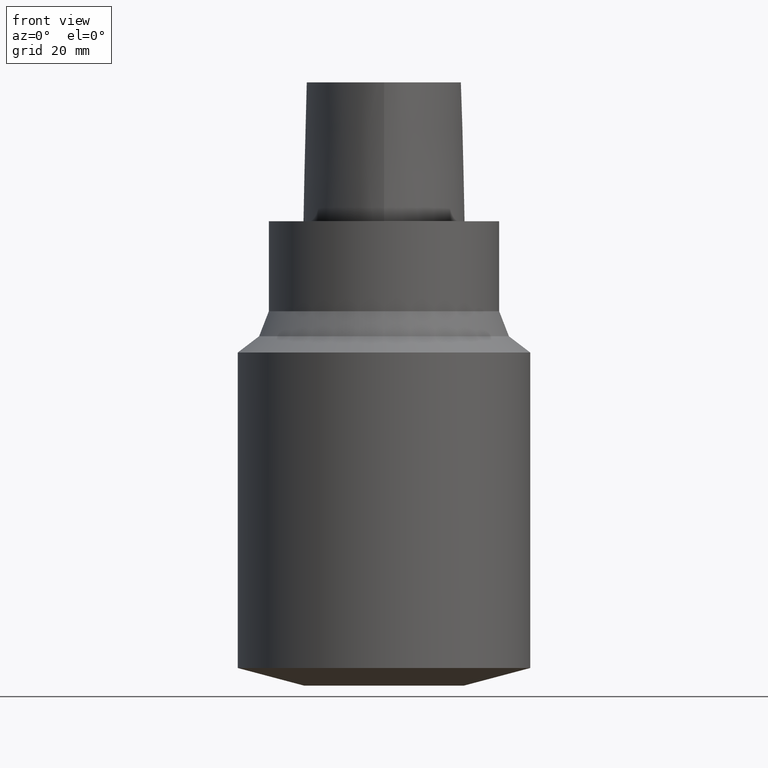
[diagram: clean part render]
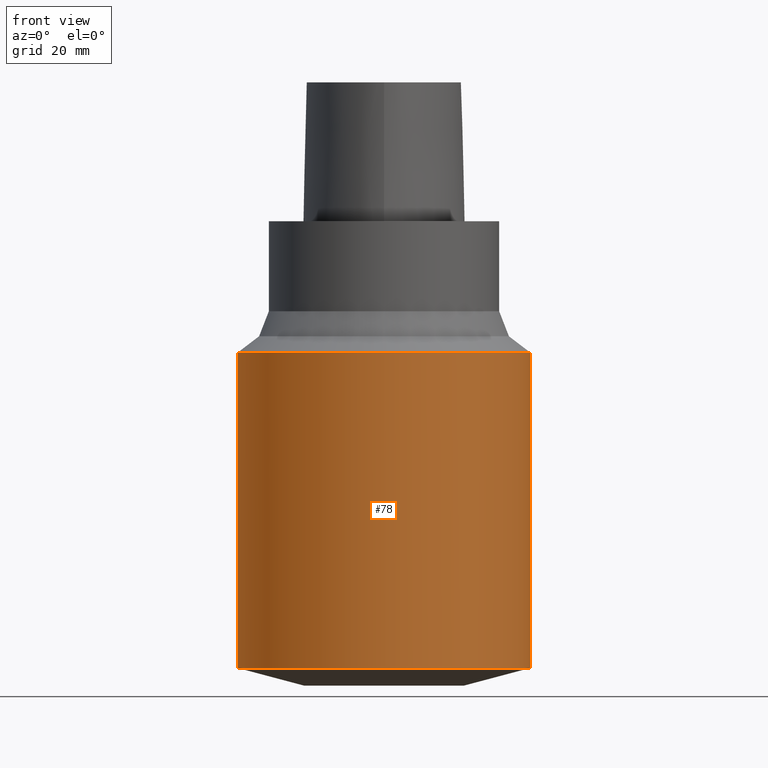
[diagram: same view with one face highlighted and labeled with its STEP entity id]
A machine part, front view. The second image highlights one B-rep face of the part: STEP entity #78.
In plain terms, the highlighted cylindrical surface (bore or boss wall) has radius 40 mm, axis along (0, 0, -1).
Its self-contained STEP definition (entity closure, byte-faithful):
#78=ADVANCED_FACE('Unnamed[1]',(#170,#171),#172,.T.);
#80=EDGE_CURVE('Unnamed[1]',#174,#174,#175,.T.);
#110=EDGE_CURVE('Unnamed[1]',#217,#217,#218,.T.);
#170=FACE_BOUND('',#466,.T.);
#171=FACE_BOUND('',#467,.T.);
#172=CYLINDRICAL_SURFACE('',#468,40.0000000000142);
#174=VERTEX_POINT('',#471);
#175=CIRCLE('',#472,40.0000000000324);
#217=VERTEX_POINT('',#542);
#218=CIRCLE('',#543,39.9999999999961);
#466=EDGE_LOOP('',(#580));
#467=EDGE_LOOP('',(#581));
#468=AXIS2_PLACEMENT_3D('',#582,#583,#584);
#471=CARTESIAN_POINT('',(2.19742975838125E-015,40.0000000000324,-35.8867513459584));
#472=AXIS2_PLACEMENT_3D('',#585,#586,#587);
#542=CARTESIAN_POINT('',(7.48117836582536E-015,39.9999999999961,-122.176914536241));
#543=AXIS2_PLACEMENT_3D('',#636,#637,#638);
#580=ORIENTED_EDGE('',*,*,#110,.F.);
#581=ORIENTED_EDGE('',*,*,#80,.T.);
#582=CARTESIAN_POINT('',(4.8393040621033E-015,9.6786081242066E-015,-79.0318329410997));
#583=DIRECTION('',(6.12323399573677E-017,1.22464679914735E-016,-1.0));
#584=DIRECTION('',(-1.23259516440783E-032,1.0,1.22464679914735E-016));
#585=CARTESIAN_POINT('',(2.19742975838125E-015,4.39485951676249E-015,-35.8867513459584));
#586=DIRECTION('',(6.12323399573677E-017,1.22464679914735E-016,-1.0));
#587=DIRECTION('',(-1.23259516440783E-032,1.0,1.22464679914735E-016));
#636=CARTESIAN_POINT('',(7.48117836582536E-015,1.49623567316507E-014,-122.176914536241));
#637=DIRECTION('',(6.12323399573676E-017,1.22464679914735E-016,-1.0));
#638=DIRECTION('',(-1.23259516440783E-032,1.0,1.22464679914735E-016));